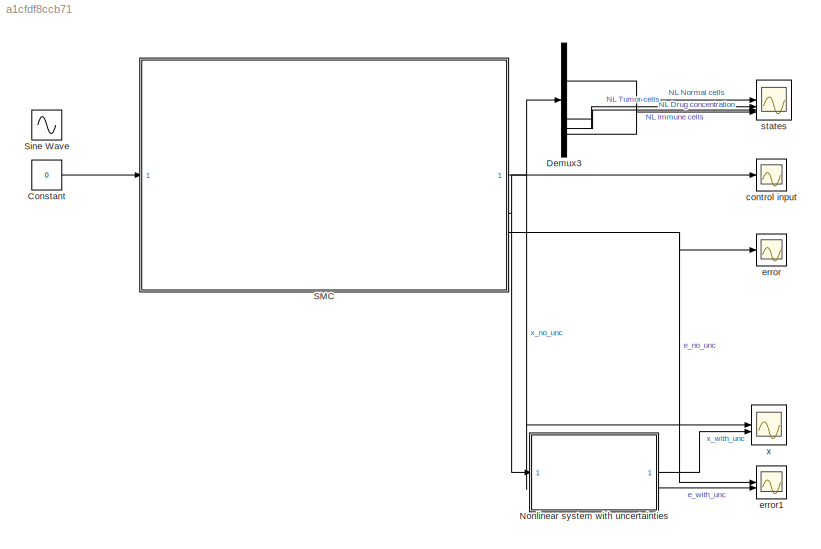
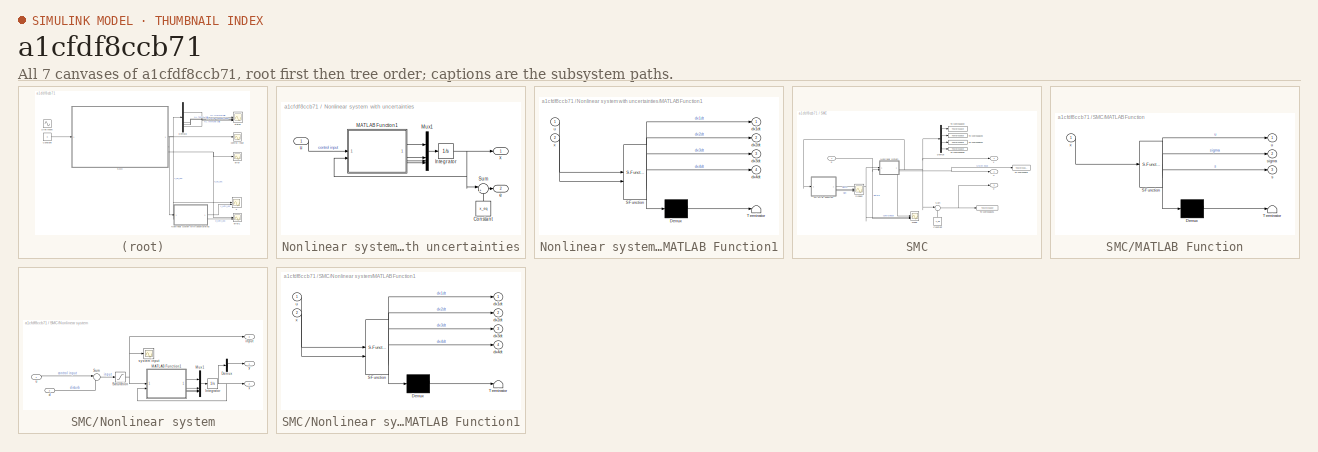
[diagram: thumbnail index - all 7 canvases of the model, root first then tree order]
MODEL slx_a1cfdf8ccb71
KIND model
CONFIG AbsTol = auto
CONFIG EnableMultiTasking = off
CONFIG FixedStep = 1e-3
CONFIG MaxStep = auto
CONFIG MinStep = auto
CONFIG RelTol = 1e-4
CONFIG SampleTimeConstraint = Unconstrained
CONFIG SolverName = ode45
CONFIG StartTime = 0.0
CONFIG StopTime = 100
BLOCK [Constant] Constant
  Value = 0
BLOCK [Demux] Demux3
BLOCK [SubSystem] Nonlinear system with uncertainties
BLOCK [Constant] Nonlinear system with uncertainties/Constant
  NameLocation = right
  Value = x_eq
BLOCK [Integrator] Nonlinear system with uncertainties/Integrator
  InitialCondition = x_0
  LimitOutput = on
  LowerSaturationLimit = 0
  ZeroCross = off
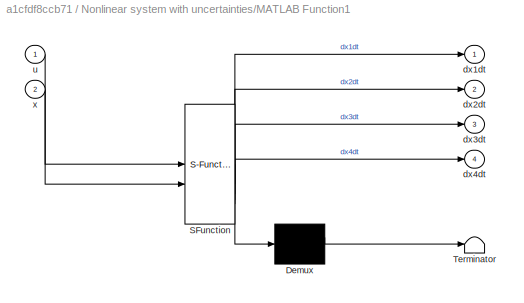
BLOCK [SubSystem] Nonlinear system with uncertainties/MATLAB Function1
  ErrorFcn = Stateflow.Translate.translate
  PermitHierarchicalResolution = ExplicitOnly
  SFBlockType = MATLAB Function
  TreatAsAtomicUnit = on
BLOCK [Demux] Nonlinear system with uncertainties/MATLAB Function1/ Demux 
  Outputs = 1
BLOCK [S-Function] Nonlinear system with uncertainties/MATLAB Function1/ SFunction 
  EnableBusSupport = on
  FunctionName = sf_sfun
  Parameters = alpha,b1,b2,c1,c2,c3,c4,d1,gamma1,gamma2,gamma3,k,r1,r2,rho,s
  PortCounts = [2 5]
  SFcnIsStateOwnerBlock = off
  SFunctionDeploymentMode = off
  Tag = Stateflow S-Function 3
BLOCK [Terminator] Nonlinear system with uncertainties/MATLAB Function1/ Terminator 
BLOCK [Outport] Nonlinear system with uncertainties/MATLAB Function1/dx1dt
BLOCK [Outport] Nonlinear system with uncertainties/MATLAB Function1/dx2dt
  Port = 2
BLOCK [Outport] Nonlinear system with uncertainties/MATLAB Function1/dx3dt
  Port = 3
BLOCK [Outport] Nonlinear system with uncertainties/MATLAB Function1/dx4dt
  Port = 4
BLOCK [Inport] Nonlinear system with uncertainties/MATLAB Function1/u
BLOCK [Inport] Nonlinear system with uncertainties/MATLAB Function1/x
  Port = 2
BLOCK [Mux] Nonlinear system with uncertainties/Mux1
  DisplayOption = bar
BLOCK [Sum] Nonlinear system with uncertainties/Sum
  Inputs = |+-
BLOCK [Outport] Nonlinear system with uncertainties/e
  Port = 2
BLOCK [Inport] Nonlinear system with uncertainties/u
BLOCK [Outport] Nonlinear system with uncertainties/x
BLOCK [SubSystem] SMC
BLOCK [Constant] SMC/Constant
  NameLocation = right
  Value = x_eq
BLOCK [Demux] SMC/Demux
BLOCK [SubSystem] SMC/MATLAB Function
  ErrorFcn = Stateflow.Translate.translate
  PermitHierarchicalResolution = ExplicitOnly
  SFBlockType = MATLAB Function
  TreatAsAtomicUnit = on
BLOCK [Demux] SMC/MATLAB Function/ Demux 
  Outputs = 1
BLOCK [S-Function] SMC/MATLAB Function/ SFunction 
  EnableBusSupport = on
  FunctionName = sf_sfun
  Parameters = K,alpha,b1,b2,c1,c2,c3,c4,d1,epsilon,gamma1,gamma2,gamma3,k,p1,p2,p3,p4,r1,r2,rho,x_eq
  PortCounts = [1 4]
  SFcnIsStateOwnerBlock = off
  SFunctionDeploymentMode = off
  Tag = Stateflow S-Function 1
BLOCK [Terminator] SMC/MATLAB Function/ Terminator 
BLOCK [Outport] SMC/MATLAB Function/s
  Port = 3
BLOCK [Outport] SMC/MATLAB Function/sigma
  Port = 2
BLOCK [Outport] SMC/MATLAB Function/u
BLOCK [Inport] SMC/MATLAB Function/x
BLOCK [SubSystem] SMC/Nonlinear system
BLOCK [Demux] SMC/Nonlinear system/Demux
BLOCK [Integrator] SMC/Nonlinear system/Integrator
  InitialCondition = x_0
  LimitOutput = on
  LowerSaturationLimit = 0
  ZeroCross = off
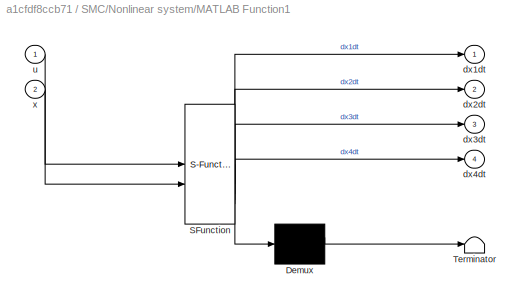
BLOCK [SubSystem] SMC/Nonlinear system/MATLAB Function1
  ErrorFcn = Stateflow.Translate.translate
  PermitHierarchicalResolution = ExplicitOnly
  SFBlockType = MATLAB Function
  TreatAsAtomicUnit = on
BLOCK [Demux] SMC/Nonlinear system/MATLAB Function1/ Demux 
  Outputs = 1
BLOCK [S-Function] SMC/Nonlinear system/MATLAB Function1/ SFunction 
  EnableBusSupport = on
  FunctionName = sf_sfun
  Parameters = alpha,b1,b2,c1,c2,c3,c4,d1,gamma1,gamma2,gamma3,k,r1,r2,rho,s
  PortCounts = [2 5]
  SFcnIsStateOwnerBlock = off
  SFunctionDeploymentMode = off
  Tag = Stateflow S-Function 2
BLOCK [Terminator] SMC/Nonlinear system/MATLAB Function1/ Terminator 
BLOCK [Outport] SMC/Nonlinear system/MATLAB Function1/dx1dt
BLOCK [Outport] SMC/Nonlinear system/MATLAB Function1/dx2dt
  Port = 2
BLOCK [Outport] SMC/Nonlinear system/MATLAB Function1/dx3dt
  Port = 3
BLOCK [Outport] SMC/Nonlinear system/MATLAB Function1/dx4dt
  Port = 4
BLOCK [Inport] SMC/Nonlinear system/MATLAB Function1/u
BLOCK [Inport] SMC/Nonlinear system/MATLAB Function1/x
  Port = 2
BLOCK [Mux] SMC/Nonlinear system/Mux1
  DisplayOption = bar
BLOCK [Saturate] SMC/Nonlinear system/Saturation
  LowerLimit = 0
  UpperLimit = inf
BLOCK [Sum] SMC/Nonlinear system/Sum
  Inputs = |++
BLOCK [Inport] SMC/Nonlinear system/d
  Port = 2
BLOCK [Outport] SMC/Nonlinear system/input
  Port = 3
BLOCK [Scope] SMC/Nonlinear system/system input
  Floating = off
  NumInputPorts = 1
  ScopeSpecificationString = Simulink.scopes.TimeScopeBlockCfg('CurrentConfiguration', extmgr.ConfigurationSet(extmgr.Configuration('Core','General UI',true,'FigureColor',[1 1 1]),extmgr.Configuration('Core','Source UI',true),extmgr.Configuration('Sources','WiredSimulink',true,'DataLoggingVariableName','ScopeData1'),extmgr.Configuration('Visuals','Time Domain',true,'SerializedDisplays',{struct('MinYLimReal','-0.81335','MaxYLi...<+1718ch>
BLOCK [Inport] SMC/Nonlinear system/u
BLOCK [Outport] SMC/Nonlinear system/x
  Port = 2
BLOCK [Outport] SMC/Nonlinear system/y
BLOCK [Scope] SMC/Scope2
  Floating = off
  NumInputPorts = 2
  ScopeSpecificationString = Simulink.scopes.TimeScopeBlockCfg('CurrentConfiguration', extmgr.ConfigurationSet(extmgr.Configuration('Core','General UI',true),extmgr.Configuration('Core','Source UI',true),extmgr.Configuration('Sources','WiredSimulink',true),extmgr.Configuration('Visuals','Time Domain',true,'SerializedDisplays',{struct('MinYLimReal','-1.25','MaxYLimReal','1.25','YLabelReal','','MinYLimMag','0.00000','MaxYLimMag...<+1485ch>
BLOCK [Sum] SMC/Sum
  Inputs = |+-
BLOCK [ToWorkspace] SMC/To Workspace
  FixptAsFi = on
  MaxDataPoints = inf
  SampleTime = -1
  SaveFormat = Timeseries
  VariableName = SMC_control
BLOCK [ToWorkspace] SMC/To Workspace1
  FixptAsFi = on
  MaxDataPoints = inf
  SampleTime = -1
  SaveFormat = Timeseries
  VariableName = SMC_error
BLOCK [ToWorkspace] SMC/To Workspace2
  FixptAsFi = on
  MaxDataPoints = inf
  SampleTime = -1
  SaveFormat = Timeseries
  VariableName = SMC_normal
BLOCK [ToWorkspace] SMC/To Workspace3
  FixptAsFi = on
  MaxDataPoints = inf
  SampleTime = -1
  SaveFormat = Timeseries
  VariableName = SMC_tumor
BLOCK [ToWorkspace] SMC/To Workspace4
  FixptAsFi = on
  MaxDataPoints = inf
  SampleTime = -1
  SaveFormat = Timeseries
  VariableName = SMC_immune
BLOCK [ToWorkspace] SMC/To Workspace5
  FixptAsFi = on
  MaxDataPoints = inf
  SampleTime = -1
  SaveFormat = Timeseries
  VariableName = SMC_drug
BLOCK [Inport] SMC/d
BLOCK [Outport] SMC/e
  Port = 3
BLOCK [Scope] SMC/scope
  Floating = off
  NumInputPorts = 3
  ScopeSpecificationString = Simulink.scopes.TimeScopeBlockCfg('CurrentConfiguration', extmgr.ConfigurationSet(extmgr.Configuration('Core','General UI',true,'FigureColor',[1 1 1]),extmgr.Configuration('Core','Source UI',true),extmgr.Configuration('Sources','WiredSimulink',true,'DataLoggingVariableName','ScopeData1'),extmgr.Configuration('Visuals','Time Domain',true,'SerializedDisplays',{struct('MinYLimReal','-2.17357','MaxYLi...<+1874ch>
BLOCK [Outport] SMC/u
  Port = 2
BLOCK [Outport] SMC/x
BLOCK [Sin] Sine Wave
  Amplitude = 1.5
  Frequency = 0.5
  SampleTime = 0
BLOCK [Scope] control input
  Floating = off
  NumInputPorts = 1
  ScopeSpecificationString = Simulink.scopes.TimeScopeBlockCfg('CurrentConfiguration', extmgr.ConfigurationSet(extmgr.Configuration('Core','General UI',true,'FigureColor',[1 1 1]),extmgr.Configuration('Core','Source UI',true),extmgr.Configuration('Sources','WiredSimulink',true,'DataLoggingVariableName','ScopeData3'),extmgr.Configuration('Visuals','Time Domain',true,'SerializedDisplays',{struct('MinYLimReal','-0.18748','MaxYLi...<+1617ch>
BLOCK [Scope] error
  Floating = off
  NumInputPorts = 1
  ScopeSpecificationString = Simulink.scopes.TimeScopeBlockCfg('CurrentConfiguration', extmgr.ConfigurationSet(extmgr.Configuration('Core','General UI',true,'FigureColor',[1 1 1]),extmgr.Configuration('Core','Source UI',true),extmgr.Configuration('Sources','WiredSimulink',true,'DataLoggingVariableName','ScopeData2'),extmgr.Configuration('Visuals','Time Domain',true,'SerializedDisplays',{struct('MinYLimReal','-1.8125','MaxYLim...<+1644ch>
BLOCK [Scope] error1
  Floating = off
  NumInputPorts = 2
  ScopeSpecificationString = Simulink.scopes.TimeScopeBlockCfg('CurrentConfiguration', extmgr.ConfigurationSet(extmgr.Configuration('Core','General UI',true,'FigureColor',[1 1 1]),extmgr.Configuration('Core','Source UI',true),extmgr.Configuration('Sources','WiredSimulink',true,'DataLoggingVariableName','ScopeData5'),extmgr.Configuration('Visuals','Time Domain',true,'SerializedDisplays',{struct('MinYLimReal','-1.08756','MaxYLi...<+1708ch>
BLOCK [Scope] states
  Floating = off
  NumInputPorts = 4
  ScopeSpecificationString = Simulink.scopes.TimeScopeBlockCfg('CurrentConfiguration', extmgr.ConfigurationSet(extmgr.Configuration('Core','General UI',true,'FigureColor',[1 1 1]),extmgr.Configuration('Core','Source UI',true),extmgr.Configuration('Sources','WiredSimulink',true,'DataLoggingVariableName','ScopeData1'),extmgr.Configuration('Visuals','Time Domain',true,'PlotType','Line','SerializedDisplays',{struct('MinYLimReal',...<+2306ch>
BLOCK [Scope] x
  Floating = off
  NumInputPorts = 2
  ScopeSpecificationString = Simulink.scopes.TimeScopeBlockCfg('CurrentConfiguration', extmgr.ConfigurationSet(extmgr.Configuration('Core','General UI',true,'FigureColor',[1 1 1]),extmgr.Configuration('Core','Source UI',true),extmgr.Configuration('Sources','WiredSimulink',true,'DataLoggingVariableName','ScopeData4'),extmgr.Configuration('Visuals','Time Domain',true,'PlotType','Line','SerializedDisplays',{struct('MinYLimReal',...<+2852ch>
LINE Constant:1 -> SMC:1
LINE Demux3:1 -> states:1
LINE Demux3:2 -> states:2
LINE Demux3:3 -> states:3
LINE Demux3:4 -> states:4
LINE Nonlinear system with uncertainties/Constant:1 -> Nonlinear system with uncertainties/Sum:2
NET Nonlinear system with uncertainties/Integrator:1 -> Nonlinear system with uncertainties/MATLAB Function1:2, Nonlinear system with uncertainties/Sum:1, Nonlinear system with uncertainties/x:1
LINE Nonlinear system with uncertainties/MATLAB Function1:1 -> Nonlinear system with uncertainties/Mux1:1
LINE Nonlinear system with uncertainties/MATLAB Function1:2 -> Nonlinear system with uncertainties/Mux1:2
LINE Nonlinear system with uncertainties/MATLAB Function1:3 -> Nonlinear system with uncertainties/Mux1:3
LINE Nonlinear system with uncertainties/MATLAB Function1:4 -> Nonlinear system with uncertainties/Mux1:4
LINE Nonlinear system with uncertainties/Mux1:1 -> Nonlinear system with uncertainties/Integrator:1
LINE Nonlinear system with uncertainties/Sum:1 -> Nonlinear system with uncertainties/e:1
LINE Nonlinear system with uncertainties/u:1 -> Nonlinear system with uncertainties/MATLAB Function1:1
LINE Nonlinear system with uncertainties:1 -> x:2
LINE Nonlinear system with uncertainties:2 -> error1:2
LINE SMC/Constant:1 -> SMC/Sum:2
LINE SMC/Demux:1 -> SMC/To Workspace2:1
LINE SMC/Demux:2 -> SMC/To Workspace3:1
LINE SMC/Demux:3 -> SMC/To Workspace4:1
LINE SMC/Demux:4 -> SMC/To Workspace5:1
NET SMC/MATLAB Function:1 -> SMC/Nonlinear system:1, SMC/scope:2
LINE SMC/MATLAB Function:2 -> SMC/Scope2:1
LINE SMC/MATLAB Function:3 -> SMC/Scope2:2
LINE SMC/Nonlinear system/Demux:2 -> SMC/Nonlinear system/y:1
NET SMC/Nonlinear system/Integrator:1 -> SMC/Nonlinear system/Demux:1, SMC/Nonlinear system/MATLAB Function1:2, SMC/Nonlinear system/x:1
LINE SMC/Nonlinear system/MATLAB Function1:1 -> SMC/Nonlinear system/Mux1:1
LINE SMC/Nonlinear system/MATLAB Function1:2 -> SMC/Nonlinear system/Mux1:2
LINE SMC/Nonlinear system/MATLAB Function1:3 -> SMC/Nonlinear system/Mux1:3
LINE SMC/Nonlinear system/MATLAB Function1:4 -> SMC/Nonlinear system/Mux1:4
LINE SMC/Nonlinear system/Mux1:1 -> SMC/Nonlinear system/Integrator:1
NET SMC/Nonlinear system/Saturation:1 -> SMC/Nonlinear system/MATLAB Function1:1, SMC/Nonlinear system/input:1, SMC/Nonlinear system/system input:1
LINE SMC/Nonlinear system/Sum:1 -> SMC/Nonlinear system/Saturation:1
LINE SMC/Nonlinear system/d:1 -> SMC/Nonlinear system/Sum:2
LINE SMC/Nonlinear system/u:1 -> SMC/Nonlinear system/Sum:1
NET SMC/Nonlinear system:2 -> SMC/Demux:1, SMC/MATLAB Function:1, SMC/Sum:1, SMC/x:1
NET SMC/Nonlinear system:3 -> SMC/To Workspace:1, SMC/scope:1, SMC/u:1
NET SMC/Sum:1 -> SMC/To Workspace1:1, SMC/e:1
NET SMC/d:1 -> SMC/Nonlinear system:2, SMC/scope:3
NET SMC:1 -> Demux3:1, x:1
NET SMC:2 -> Nonlinear system with uncertainties:1, control input:1
NET SMC:3 -> error1:1, error:1
note: NET lines group one-source signal fan-out (src -> all destinations, sorted); 1:1 wires keep LINE
CHART SMC/MATLAB Function states=1 transitions=1
  STATE_LABEL 'eML_blk_kernel()'
  STATE_LABEL 'SCRIPT:\nfunction [u, sigma,s] = SMC(x, p1, p2, k, gamma1, c4, alpha, gamma3, gamma2, d1, rho, c2, c3, c1, b2, b1, r2, r1, x_eq, p4, p3, K, epsilon)  \n    x1 = x(1);       % (normal cells)\n    x2 = x(2);       % (tumor cells)\n    x3 = x(3);       % (immune cells)\n    x4 = x(4);       % (drug concentration)\n\n    sigma = p1*(x1 - x_eq(1)) + p2*x2 + p3*(x3 - x_eq(3)) + p4*x4;\n\n    if sigma <-epsilon\n ...<+447ch>'
CHART SMC/Nonlinear system/MATLAB Function1 states=1 transitions=1
  STATE_LABEL 'eML_blk_kernel()'
  STATE_LABEL 'SCRIPT:\nfunction [dx1dt,dx2dt,dx3dt, dx4dt] = tumor_growth(u,x,r1, r2, b1, b2, c1, c3, c2, c4, rho, alpha, s, d1, gamma1, gamma2, gamma3, k)\n\n    x1 = x(1);       % (normal cells)\n    x2 = x(2);       % (tumor cells)\n    x3 = x(3);       % (immune cells)\n    x4 = x(4);       % (drug concentration)\n    \n    dx1dt = r2 * x1 * (1 - b2 * x1) - c4 * x2 * x1 - gamma1 * x4;\n    dx2dt = r1 * x2 * (1 - b1 ...<+167ch>'
CHART Nonlinear system with uncertainties/MATLAB Function1 states=1 transitions=1
  STATE_LABEL 'eML_blk_kernel()'
  STATE_LABEL 'SCRIPT:\nfunction [dx1dt,dx2dt,dx3dt, dx4dt] = tumor_growth(u,x,r1, r2, b1, b2, c1, c3, c2, c4, rho, alpha, s, d1, gamma1, gamma2, gamma3, k)\n\n    c1_real = c1*(1+0.5);\n    c4_real = c4*(1+0.5);\n\n    x1 = x(1);       % (normal cells)\n    x2 = x(2);       % (tumor cells)\n    x3 = x(3);       % (immune cells)\n    x4 = x(4);       % (drug concentration)\n    \n    dx1dt = r2 * x1 * (1 - b2 * x1) - c4_re...<+230ch>'
CHART  states=0 transitions=0
CHART  states=0 transitions=0
CHART  states=0 transitions=0
